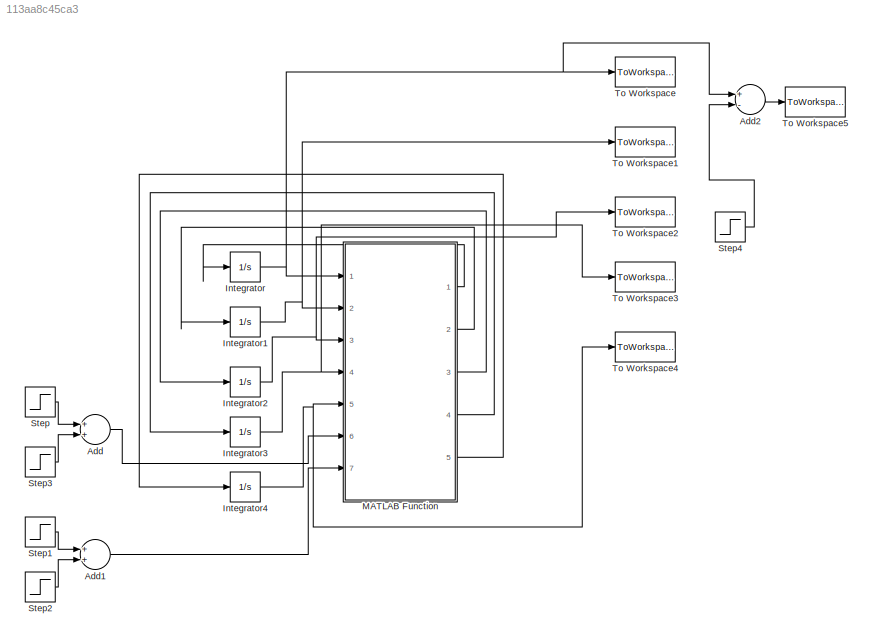
MODEL slx_113aa8c45ca3
KIND model
CONFIG AbsTol = auto
CONFIG FixedStep = sampletime
CONFIG MaxStep = auto
CONFIG MinStep = auto
CONFIG RelTol = 1e-3
CONFIG SampleTimeConstraint = Unconstrained
CONFIG Solver = ode8
CONFIG SolverMode = Auto
CONFIG SolverName = ode8
CONFIG StartTime = 0.0
CONFIG StopTime = Ts
BLOCK [Sum] Add
  InputSameDT = off
  OutDataTypeStr = Inherit: Inherit via internal rule
  Ports = [2, 1]
  SaturateOnIntegerOverflow = off
BLOCK [Sum] Add1
  InputSameDT = off
  OutDataTypeStr = Inherit: Inherit via internal rule
  Ports = [2, 1]
  SaturateOnIntegerOverflow = off
BLOCK [Sum] Add2
  InputSameDT = off
  Inputs = +-
  OutDataTypeStr = Inherit: Inherit via internal rule
  Ports = [2, 1]
  SaturateOnIntegerOverflow = off
BLOCK [Integrator] Integrator
  InitialCondition = w_r1
  Ports = [1, 1]
BLOCK [Integrator] Integrator1
  InitialCondition = w_g1
  Ports = [1, 1]
BLOCK [Integrator] Integrator2
  InitialCondition = S1
  Ports = [1, 1]
BLOCK [Integrator] Integrator3
  InitialCondition = Teta1
  Ports = [1, 1]
BLOCK [Integrator] Integrator4
  InitialCondition = T_g1
  Ports = [1, 1]
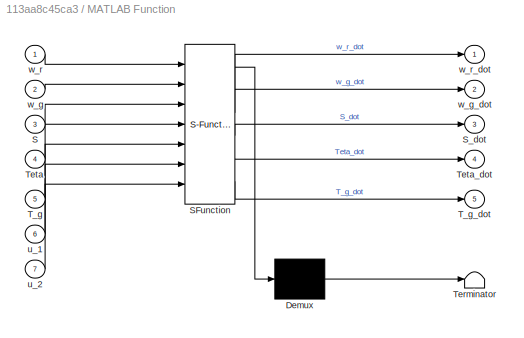
BLOCK [SubSystem] MATLAB Function
  ErrorFcn = Stateflow.Translate.translate
  PermitHierarchicalResolution = ExplicitOnly
  Ports = [7, 5]
  RequestExecContextInheritance = off
  SFBlockType = MATLAB Function
  TreatAsAtomicUnit = on
  Variant = off
BLOCK [Demux] MATLAB Function/ Demux 
  Outputs = 1
  Ports = [1, 1]
BLOCK [S-Function] MATLAB Function/ SFunction 
  EnableBusSupport = on
  FunctionName = sf_sfun
  PortCounts = [7 6]
  Ports = [7, 6]
  SFunctionDeploymentMode = off
  Tag = Stateflow S-Function nonlinear2 2
BLOCK [Terminator] MATLAB Function/ Terminator 
BLOCK [Inport] MATLAB Function/S
  IconDisplay = Port number
  Port = 3
BLOCK [Outport] MATLAB Function/S_dot
  IconDisplay = Port number
  Port = 3
BLOCK [Inport] MATLAB Function/T_g
  IconDisplay = Port number
  Port = 5
BLOCK [Outport] MATLAB Function/T_g_dot
  IconDisplay = Port number
  Port = 5
BLOCK [Inport] MATLAB Function/Teta
  IconDisplay = Port number
  Port = 4
BLOCK [Outport] MATLAB Function/Teta_dot
  IconDisplay = Port number
  Port = 4
BLOCK [Inport] MATLAB Function/u_1
  IconDisplay = Port number
  Port = 6
BLOCK [Inport] MATLAB Function/u_2
  IconDisplay = Port number
  Port = 7
BLOCK [Inport] MATLAB Function/w_g
  IconDisplay = Port number
  Port = 2
BLOCK [Outport] MATLAB Function/w_g_dot
  IconDisplay = Port number
  Port = 2
BLOCK [Inport] MATLAB Function/w_r
  IconDisplay = Port number
BLOCK [Outport] MATLAB Function/w_r_dot
  IconDisplay = Port number
BLOCK [Step] Step
  After = u1
  SampleTime = 0
  Time = 0
BLOCK [Step] Step1
  After = u2
  SampleTime = 0
  Time = 0
BLOCK [Step] Step2
  After = u22
  SampleTime = 0
  Time = 0
BLOCK [Step] Step3
  After = u11
  SampleTime = 0
  Time = 0
BLOCK [Step] Step4
  After = 0.072676784965328
  SampleTime = 0
  Time = 0
BLOCK [ToWorkspace] To Workspace
  FixptAsFi = on
  MaxDataPoints = inf
  Ports = [1]
  SampleTime = -1
  Save2DSignal = 3-D array (concatenate along third dimension)
  VariableName = w_r
BLOCK [ToWorkspace] To Workspace1
  FixptAsFi = on
  MaxDataPoints = inf
  Ports = [1]
  SampleTime = -1
  Save2DSignal = 3-D array (concatenate along third dimension)
  VariableName = w_g
BLOCK [ToWorkspace] To Workspace2
  FixptAsFi = on
  MaxDataPoints = inf
  Ports = [1]
  SampleTime = -1
  Save2DSignal = 3-D array (concatenate along third dimension)
  VariableName = S
BLOCK [ToWorkspace] To Workspace3
  FixptAsFi = on
  MaxDataPoints = inf
  Ports = [1]
  SampleTime = -1
  Save2DSignal = 3-D array (concatenate along third dimension)
  VariableName = Teta
BLOCK [ToWorkspace] To Workspace4
  FixptAsFi = on
  MaxDataPoints = inf
  Ports = [1]
  SampleTime = -1
  Save2DSignal = 3-D array (concatenate along third dimension)
  VariableName = T_g
BLOCK [ToWorkspace] To Workspace5
  FixptAsFi = on
  MaxDataPoints = inf
  Ports = [1]
  SampleTime = -1
  Save2DSignal = 3-D array (concatenate along third dimension)
  VariableName = y
LINE Add1:1 -> MATLAB Function:7
LINE Add2:1 -> To Workspace5:1
LINE Add:1 -> MATLAB Function:6
NET Integrator1:1 -> MATLAB Function:2, To Workspace1:1
NET Integrator2:1 -> MATLAB Function:3, To Workspace2:1
NET Integrator3:1 -> MATLAB Function:4, To Workspace3:1
NET Integrator4:1 -> MATLAB Function:5, To Workspace4:1
NET Integrator:1 -> Add2:1, MATLAB Function:1, To Workspace:1
LINE MATLAB Function:1 -> Integrator:1
LINE MATLAB Function:2 -> Integrator1:1
LINE MATLAB Function:3 -> Integrator2:1
LINE MATLAB Function:4 -> Integrator3:1
LINE MATLAB Function:5 -> Integrator4:1
LINE Step1:1 -> Add1:1
LINE Step2:1 -> Add1:2
LINE Step3:1 -> Add:2
LINE Step4:1 -> Add2:2
LINE Step:1 -> Add:1
note: NET lines group one-source signal fan-out (src -> all destinations, sorted); 1:1 wires keep LINE
CHART MATLAB Function states=1 transitions=1
  STATE_LABEL 'eML_blk_kernel()'
  STATE_LABEL 'SCRIPT:\nfunction [w_r_dot ,w_g_dot ,S_dot ,Teta_dot ,T_g_dot] = fcn(w_r,w_g,S,Teta,T_g,u_1,u_2)\n%#codegen\nDs=8e+4;\nJr=90000;\nNg=24.6;\nKs=8e+6;\nJg=10;\nTou_teta=0.15;\nTou_T=0.1;\nRou=1.2;\nR=14.5;\nv=14;\n\nLanda=(v/R)/w_r;\nLanda_t_inv=(1/(inv(Landa)+0.12*Teta))-(0.035/((1.5*Teta)^3+1));\nC_p=0.22*((116*Landa_t_inv)-0.6*Teta-5)*exp(-12.5*Landa_t_inv);\nP_r=0.5*Rou*pi*(R^2)*(v^3)*C_p;\n\nw_r_dot=(P_r/(Jr*w_r)...<+222ch>'
